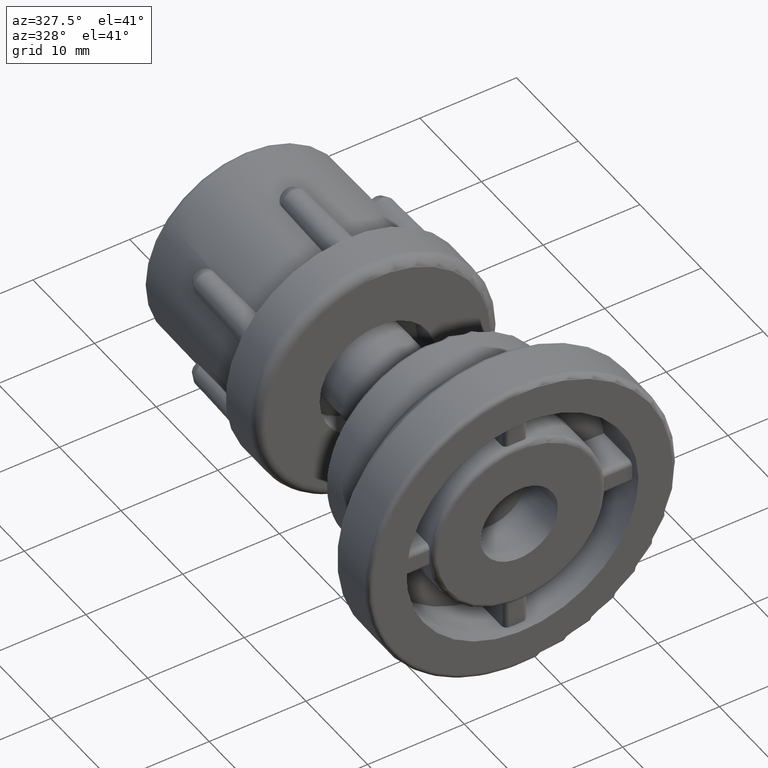
[diagram: clean part render]
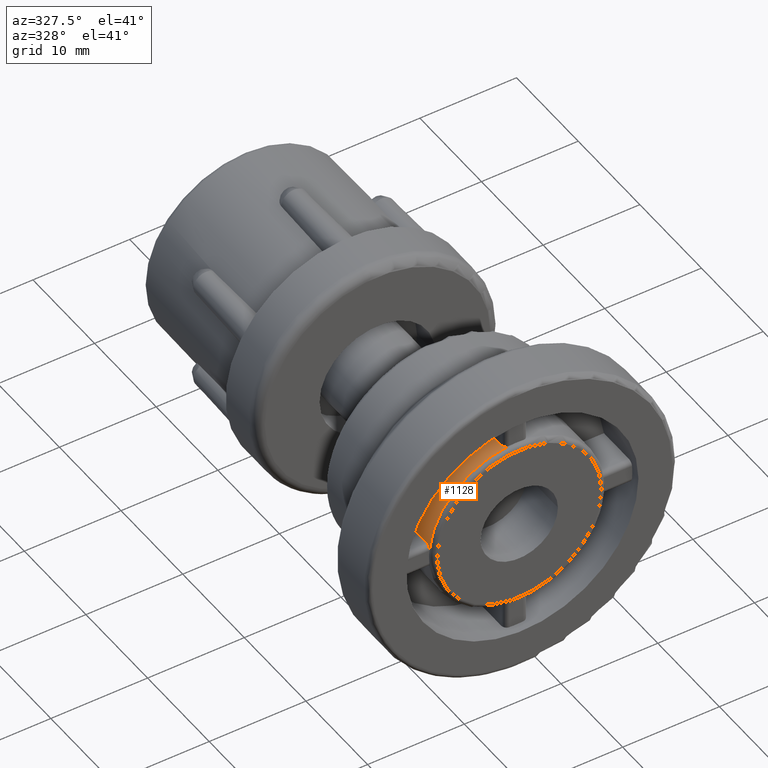
[diagram: same view with one face highlighted and labeled with its STEP entity id]
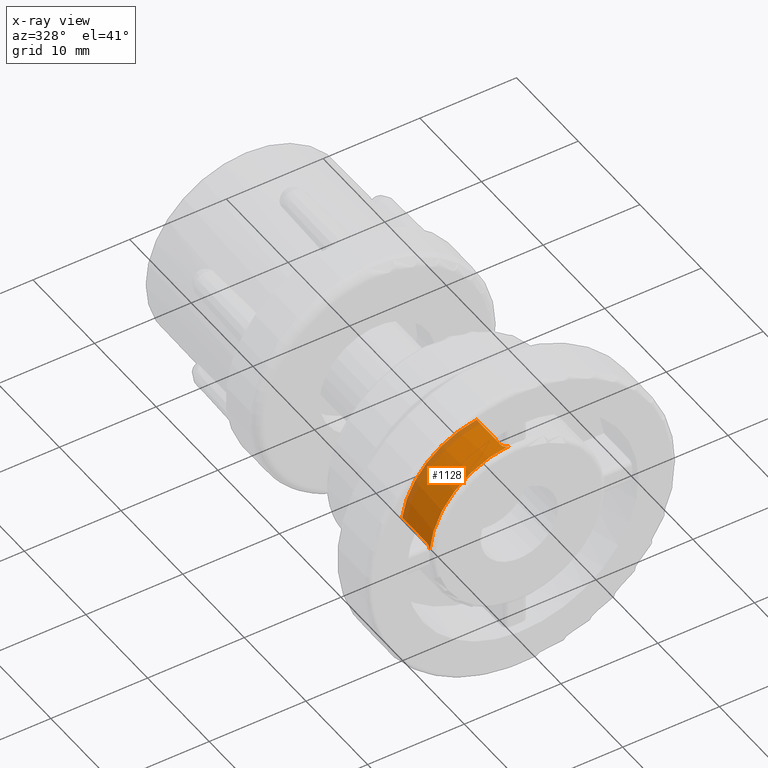
[diagram: x-ray of the same camera — body ghosted, the highlighted face saturated]
A machine part, auxiliary view. The second image highlights one B-rep face of the part: STEP entity #1128.
The next image is the same camera in x-ray: the body ghosted, the highlighted face saturated — about 14% of this face is hidden behind the body in this view.
In plain terms, the highlighted cylindrical surface (partial cylindrical patch) has radius 9 mm, axis along (0, 1, 0).
Its self-contained STEP definition (entity closure, byte-faithful):
#74=CIRCLE('',#1212,9.);
#80=CIRCLE('',#1220,9.);
#208=FACE_OUTER_BOUND('',#287,.T.);
#287=EDGE_LOOP('',(#847,#848,#849,#850,#851,#852));
#378=LINE('',#1728,#418);
#415=LINE('',#1962,#455);
#418=VECTOR('',#1354,4.);
#455=VECTOR('',#1419,4.);
#456=B_SPLINE_CURVE_WITH_KNOTS('',3,(#1702,#1703,#1704,#1705,#1706,#1707,
#1708,#1709,#1710,#1711),.UNSPECIFIED.,.F.,.F.,(4,2,2,2,4),(0.,0.0188387469666945,
0.037677493933389,0.0566139082297067,0.0755503225260245),.UNSPECIFIED.);
#470=B_SPLINE_CURVE_WITH_KNOTS('',3,(#1933,#1934,#1935,#1936,#1937,#1938,
#1939,#1940,#1941,#1942),.UNSPECIFIED.,.F.,.F.,(4,2,2,2,4),(0.226359242321466,
0.245295656617784,0.264232070914102,0.283070817880796,0.301909564847491),
 .UNSPECIFIED.);
#496=VERTEX_POINT('',#1700);
#497=VERTEX_POINT('',#1701);
#500=VERTEX_POINT('',#1727);
#538=VERTEX_POINT('',#1931);
#539=VERTEX_POINT('',#1932);
#543=VERTEX_POINT('',#1960);
#609=EDGE_CURVE('',#496,#497,#456,.T.);
#613=EDGE_CURVE('',#500,#496,#378,.T.);
#658=EDGE_CURVE('',#538,#539,#470,.F.);
#664=EDGE_CURVE('',#538,#543,#415,.T.);
#669=EDGE_CURVE('',#539,#497,#74,.T.);
#675=EDGE_CURVE('',#543,#500,#80,.T.);
#847=ORIENTED_EDGE('',*,*,#669,.F.);
#848=ORIENTED_EDGE('',*,*,#658,.F.);
#849=ORIENTED_EDGE('',*,*,#664,.T.);
#850=ORIENTED_EDGE('',*,*,#675,.T.);
#851=ORIENTED_EDGE('',*,*,#613,.T.);
#852=ORIENTED_EDGE('',*,*,#609,.T.);
#1095=CYLINDRICAL_SURFACE('',#1219,9.);
#1128=ADVANCED_FACE('',(#208),#1095,.T.);
#1212=AXIS2_PLACEMENT_3D('',#1968,#1430,#1431);
#1219=AXIS2_PLACEMENT_3D('',#1976,#1444,#1445);
#1220=AXIS2_PLACEMENT_3D('',#1977,#1446,#1447);
#1354=DIRECTION('',(0.,-1.,0.));
#1419=DIRECTION('',(0.,1.,0.));
#1430=DIRECTION('center_axis',(0.,-1.,0.));
#1431=DIRECTION('ref_axis',(-1.,0.,0.));
#1444=DIRECTION('center_axis',(0.,1.,0.));
#1445=DIRECTION('ref_axis',(-1.,0.,0.));
#1446=DIRECTION('center_axis',(6.34413156928661E-17,-1.,0.));
#1447=DIRECTION('ref_axis',(-1.,0.,0.));
#1700=CARTESIAN_POINT('',(-8.91624220173499,1.5,1.225));
#1701=CARTESIAN_POINT('',(-8.97075108338204,1.,0.724999999999999));
#1702=CARTESIAN_POINT('Ctrl Pts',(-8.91624220173499,1.5,1.225));
#1703=CARTESIAN_POINT('Ctrl Pts',(-8.91624220173499,1.43720417677769,1.225));
#1704=CARTESIAN_POINT('Ctrl Pts',(-8.91799504796832,1.37026917173728,1.21244564387399));
#1705=CARTESIAN_POINT('Ctrl Pts',(-8.92477207676993,1.24722912768921,1.16150914347134));
#1706=CARTESIAN_POINT('Ctrl Pts',(-8.92975692421021,1.19112032634881,1.12313086157963));
#1707=CARTESIAN_POINT('Ctrl Pts',(-8.9404578621422,1.10230949654349,1.03451219112729));
#1708=CARTESIAN_POINT('Ctrl Pts',(-8.9468903143191,1.06375041541312,0.978260699723942));
#1709=CARTESIAN_POINT('Ctrl Pts',(-8.95951311142866,1.0125948404136,0.85496496951835));
#1710=CARTESIAN_POINT('Ctrl Pts',(-8.96566630546914,1.,0.7879162440978));
#1711=CARTESIAN_POINT('Ctrl Pts',(-8.97075108338204,1.,0.724999999999999));
#1727=CARTESIAN_POINT('',(-8.91624220173499,5.5,1.225));
#1728=CARTESIAN_POINT('',(-8.91624220173499,0.,1.225));
#1931=CARTESIAN_POINT('',(-1.225,1.5,8.91624220173499));
#1932=CARTESIAN_POINT('',(-0.725000000000002,1.,8.97075108338204));
#1933=CARTESIAN_POINT('Ctrl Pts',(-0.725000000000001,1.,8.97075108338204));
#1934=CARTESIAN_POINT('Ctrl Pts',(-0.787916244097803,1.,8.96566630546914));
#1935=CARTESIAN_POINT('Ctrl Pts',(-0.854964969518353,1.0125948404136,8.95951311142866));
#1936=CARTESIAN_POINT('Ctrl Pts',(-0.978260699723945,1.06375041541313,8.9468903143191));
#1937=CARTESIAN_POINT('Ctrl Pts',(-1.03451219112729,1.1023094965435,8.9404578621422));
#1938=CARTESIAN_POINT('Ctrl Pts',(-1.12313086157964,1.19112032634881,8.92975692421021));
#1939=CARTESIAN_POINT('Ctrl Pts',(-1.16150914347135,1.24722912768921,8.92477207676993));
#1940=CARTESIAN_POINT('Ctrl Pts',(-1.21244564387399,1.37026917173728,8.91799504796832));
#1941=CARTESIAN_POINT('Ctrl Pts',(-1.225,1.43720417677769,8.91624220173499));
#1942=CARTESIAN_POINT('Ctrl Pts',(-1.225,1.5,8.91624220173499));
#1960=CARTESIAN_POINT('',(-1.225,5.5,8.91624220173499));
#1962=CARTESIAN_POINT('',(-1.225,0.,8.91624220173499));
#1968=CARTESIAN_POINT('Origin',(0.,1.,0.));
#1976=CARTESIAN_POINT('Origin',(0.,0.,0.));
#1977=CARTESIAN_POINT('Origin',(0.,5.5,0.));